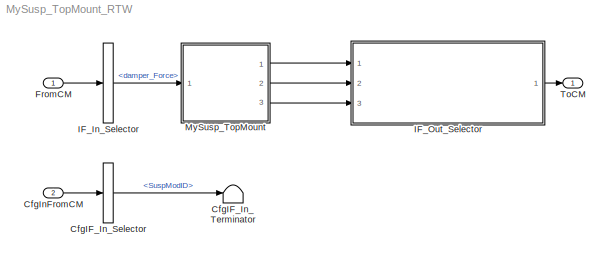
MODEL MySusp_TopMount_RTW
KIND model
CONFIG InitFcn = vehicle = 'Car'; if ~length(which('cmself')), cmenv; end\nMySusp_TopMount_RTW_bus
CONFIG PreLoadFcn = vehicle = 'Car'; if ~length(which('cmself')), cmenv; end\nMySusp_TopMount_RTW_params
BLOCK [BusSelector] CfgIF_In_Selector
  OutputSignals = SuspModID
  Ports = [1, 1]
  SID = 9
BLOCK [Terminator] CfgIF_In_Terminator
  SID = 10
BLOCK [Inport] CfgInFromCM
  OutDataTypeStr = Bus: cmSusp_TopMountCfgIn
  Port = 2
  SID = 8
BLOCK [Inport] FromCM
  OutDataTypeStr = Bus: cmSusp_TopMountIn
  SID = 1
BLOCK [BusSelector] IF_In_Selector
  OutputSignals = damper_Force
  Ports = [1, 1]
  SID = 2
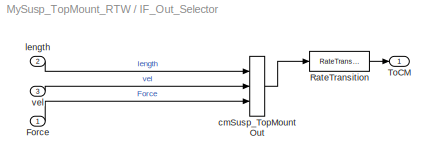
BLOCK [SubSystem] IF_Out_Selector
  OpenFcn = cmSignalSelect('SignalSelection_CB',gcb)
  Ports = [3, 1]
  RequestExecContextInheritance = off
  SID = 5
  UserData = DataTag0
  UserDataPersistent = on
BLOCK [Inport] IF_Out_Selector/Force
  SID = 16
BLOCK [RateTransition] IF_Out_Selector/RateTransition
  OutPortSampleTime = str2num(get_param(bdroot,'FixedStep'))
  SID = 6
BLOCK [Outport] IF_Out_Selector/ToCM
  SID = 7
BLOCK [BusCreator] IF_Out_Selector/cmSusp_TopMountOut
  InheritFromInputs = on
  Inputs = 3
  Ports = [3, 1]
  SID = 11
BLOCK [Inport] IF_Out_Selector/length
  Port = 2
  SID = 15
BLOCK [Inport] IF_Out_Selector/vel
  Port = 3
  SID = 17
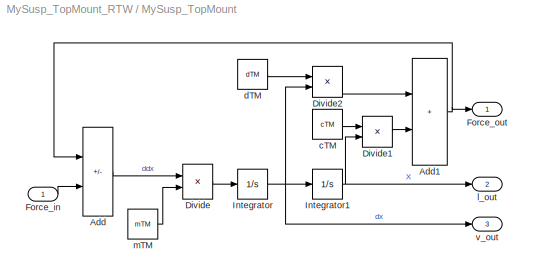
BLOCK [SubSystem] MySusp_TopMount
  Ports = [1, 3]
  RequestExecContextInheritance = off
  SID = 18
BLOCK [Sum] MySusp_TopMount/Add
  IconShape = rectangular
  Inputs = -+
  Ports = [2, 1]
  SID = 34
BLOCK [Sum] MySusp_TopMount/Add1
  IconShape = rectangular
  Ports = [2, 1]
  SID = 44
BLOCK [Product] MySusp_TopMount/Divide
  Inputs = */
  Ports = [2, 1]
  SID = 22
BLOCK [Product] MySusp_TopMount/Divide1
  Inputs = **
  Ports = [2, 1]
  SID = 36
BLOCK [Product] MySusp_TopMount/Divide2
  Inputs = **
  Ports = [2, 1]
  SID = 37
BLOCK [Inport] MySusp_TopMount/Force_in
  SID = 19
BLOCK [Outport] MySusp_TopMount/Force_out
  SID = 25
  VectorParamsAs1DForOutWhenUnconnected = off
BLOCK [Integrator] MySusp_TopMount/Integrator
  Ports = [1, 1]
  SID = 31
BLOCK [Integrator] MySusp_TopMount/Integrator1
  Ports = [1, 1]
  SID = 33
BLOCK [Constant] MySusp_TopMount/cTM
  SID = 20
  Value = cTM
BLOCK [Constant] MySusp_TopMount/dTM
  SID = 21
  Value = dTM
BLOCK [Outport] MySusp_TopMount/l_out
  Port = 2
  SID = 26
  VectorParamsAs1DForOutWhenUnconnected = off
BLOCK [Constant] MySusp_TopMount/mTM
  SID = 30
  Value = mTM
BLOCK [Outport] MySusp_TopMount/v_out
  Port = 3
  SID = 27
  VectorParamsAs1DForOutWhenUnconnected = off
BLOCK [Outport] ToCM
  OutDataTypeStr = Bus: cmSusp_TopMountOut
  SID = 4
LINE CfgIF_In_Selector:1 -> CfgIF_In_Terminator:1
LINE CfgInFromCM:1 -> CfgIF_In_Selector:1
LINE FromCM:1 -> IF_In_Selector:1
LINE IF_In_Selector:1 -> MySusp_TopMount:1
LINE IF_Out_Selector/Force:1 -> IF_Out_Selector/cmSusp_TopMountOut:3
LINE IF_Out_Selector/RateTransition:1 -> IF_Out_Selector/ToCM:1
LINE IF_Out_Selector/cmSusp_TopMountOut:1 -> IF_Out_Selector/RateTransition:1
LINE IF_Out_Selector/length:1 -> IF_Out_Selector/cmSusp_TopMountOut:1
LINE IF_Out_Selector/vel:1 -> IF_Out_Selector/cmSusp_TopMountOut:2
LINE IF_Out_Selector:1 -> ToCM:1
NET MySusp_TopMount/Add1:1 -> MySusp_TopMount/Add:1, MySusp_TopMount/Force_out:1
LINE MySusp_TopMount/Add:1 -> MySusp_TopMount/Divide:1
LINE MySusp_TopMount/Divide1:1 -> MySusp_TopMount/Add1:2
LINE MySusp_TopMount/Divide2:1 -> MySusp_TopMount/Add1:1
LINE MySusp_TopMount/Divide:1 -> MySusp_TopMount/Integrator:1
LINE MySusp_TopMount/Force_in:1 -> MySusp_TopMount/Add:2
NET MySusp_TopMount/Integrator1:1 -> MySusp_TopMount/Divide1:2, MySusp_TopMount/l_out:1
NET MySusp_TopMount/Integrator:1 -> MySusp_TopMount/Divide2:2, MySusp_TopMount/Integrator1:1, MySusp_TopMount/v_out:1
LINE MySusp_TopMount/cTM:1 -> MySusp_TopMount/Divide1:1
LINE MySusp_TopMount/dTM:1 -> MySusp_TopMount/Divide2:1
LINE MySusp_TopMount/mTM:1 -> MySusp_TopMount/Divide:2
LINE MySusp_TopMount:1 -> IF_Out_Selector:1
LINE MySusp_TopMount:2 -> IF_Out_Selector:2
LINE MySusp_TopMount:3 -> IF_Out_Selector:3
note: NET lines group one-source signal fan-out (src -> all destinations, sorted); 1:1 wires keep LINE
